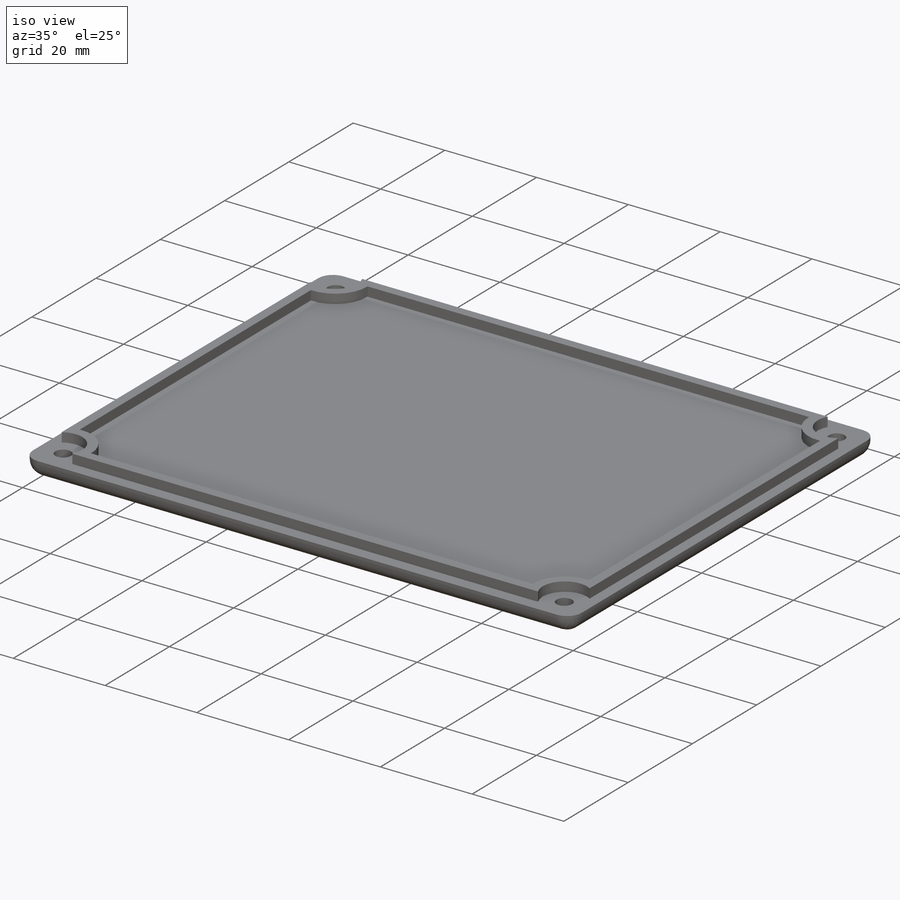
[diagram: iso view]
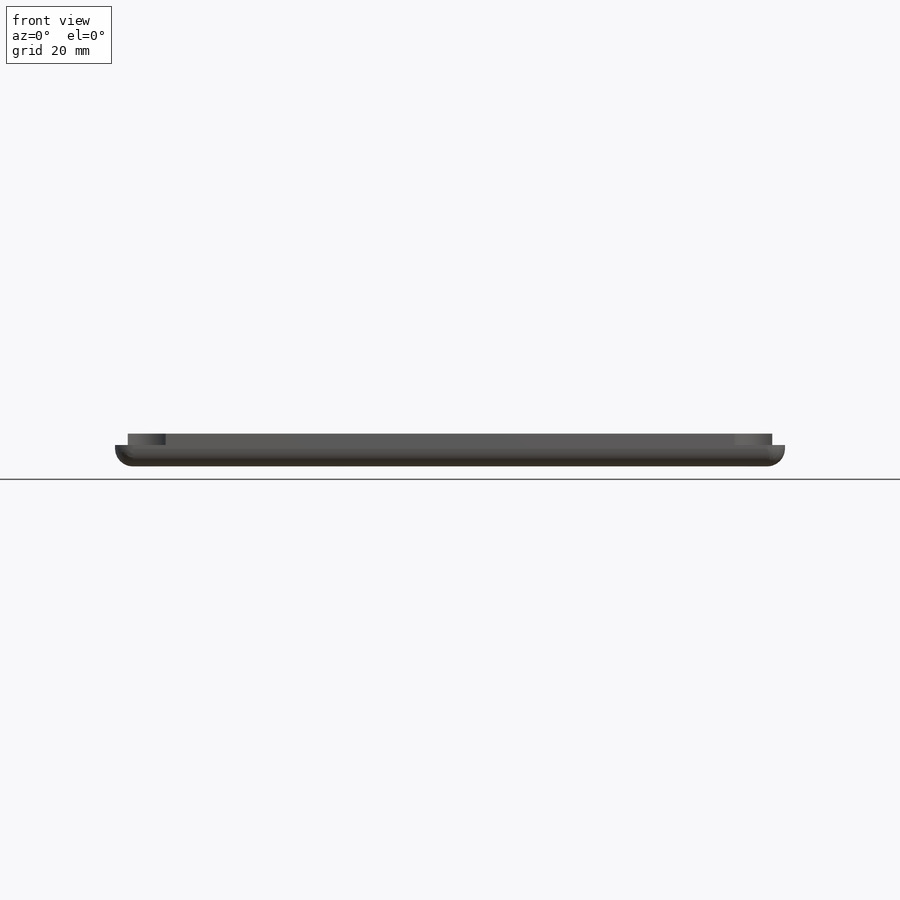
[diagram: front view]
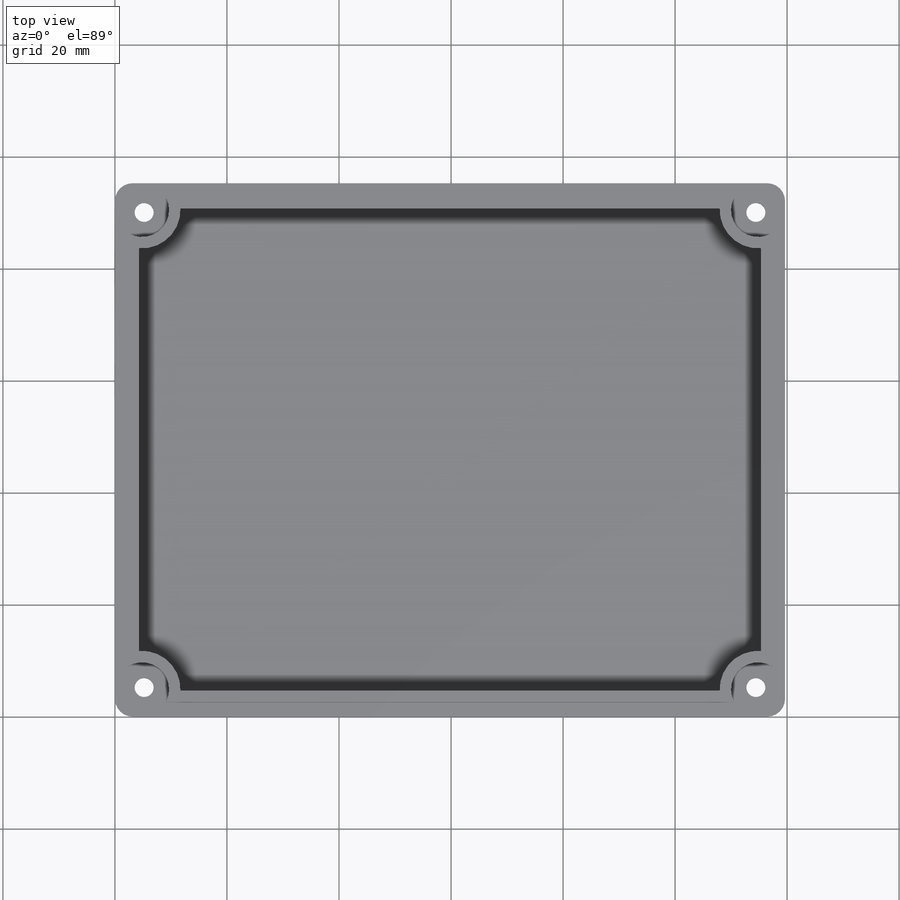
[diagram: top view]
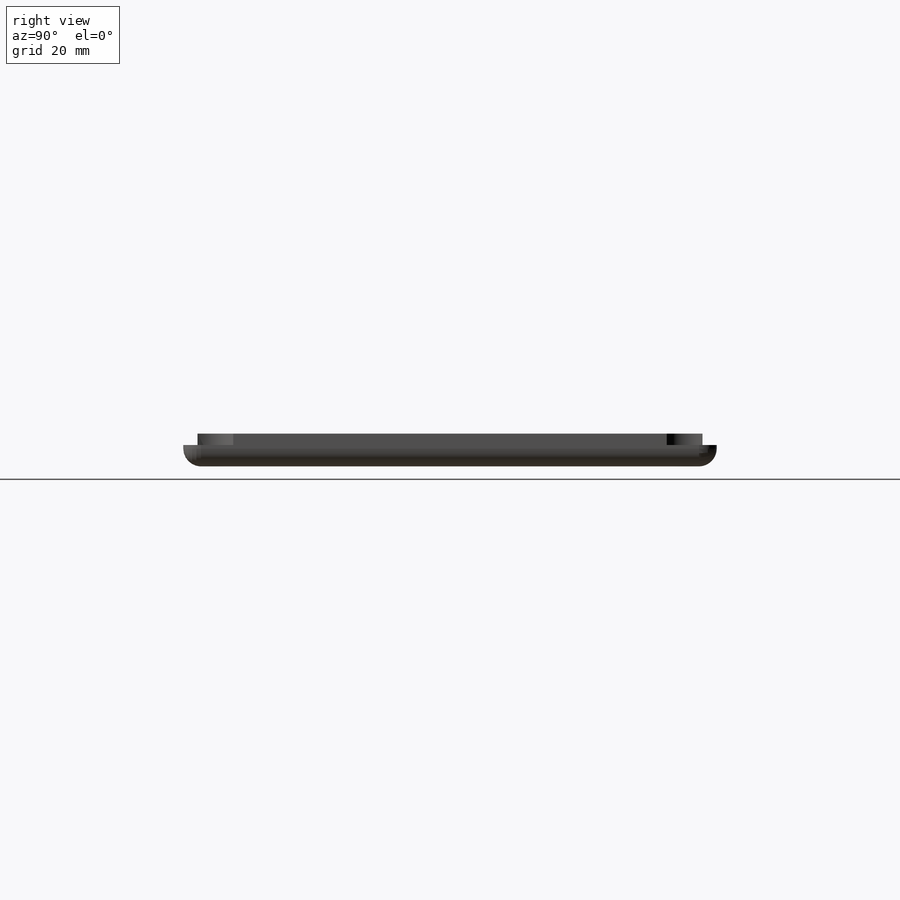
[diagram: right view]
SOLIDWORKS PART (.sldprt)
format: sldprt  version: not decoded by parser v0  size: 315,904 bytes
history: native  units: mm
features: sketch x4, extrude x2, material x1, fillet x1, hole x1 (+13 scaffold rows collapsed)
feature tree (22):
  scaffold x13  (default folders/planes/origin — collapsed)
  material  "Material <not specified>"
  sketch  "Sketch1"  dims[D1=119.634mm D2=95.25mm]
  extrude  "Boss-Extrude1"  Depth=3.81mm
  fillet  "Fillet1"  Radius=3.175mm
  sketch  "Sketch2"  dims[c1.D7=4.826mm c1.D14=4.826mm c1.D10=4.826mm c1.D13=4.826mm c1.D16=4.826mm c1.D1=2.286mm c1.D2=2.54mm c1.D3=115.062mm c1.D4=90.17mm c1.D5=4.826mm c1.D6=4.826mm c1.D8=4.826mm c1.D9=4.826mm c2.D10=4.826mm c2.D11=4.826mm c2.D12=4.826mm c2.D13=4.826mm c2.D15=~14.339417mm c3.D13=7.112mm c3.D8=4.826mm c3.D9=4.826mm c3.D11=4.826mm c3.D12=4.826mm c3.D14=4.826mm c3.D15=4.826mm c3.D17=2.032mm]
  extrude  "Boss-Extrude2"  Depth=2.032mm
  hole  "CSK for M3 Flat Head Machine Screw1"  Diameter=3.4mm Depth=25.4mm
  sketch  "Sketch4"  dims[c1.D1=6.096mm c1.D2=6.096mm c1.D3=6.096mm c1.D4=6.096mm c1.D5=6.096mm c1.D6=6.096mm c1.D7=6.096mm c1.D8=6.096mm c2.D1=84.836mm c2.D2=109.22mm]
  sketch  "Sketch5"  dims[hole-wizard template sketch: 40 standard entries collapsed; hole parameters kept: c13.Hole Depth=25.4mm c13.Near C'Sink Dia.=6.3mm c13.D4=~33.297463mm c13.Near C'Sink Angle=90.0deg c14.D5=~14.816244mm c14.Drill Angle=118.0deg]
decode coverage: 8 of 8 modeling features carry decoded parameters
note: ~ marks probable driven/reference dimensions
note: suppression state not decoded; provenance and decode notes live in map.json
